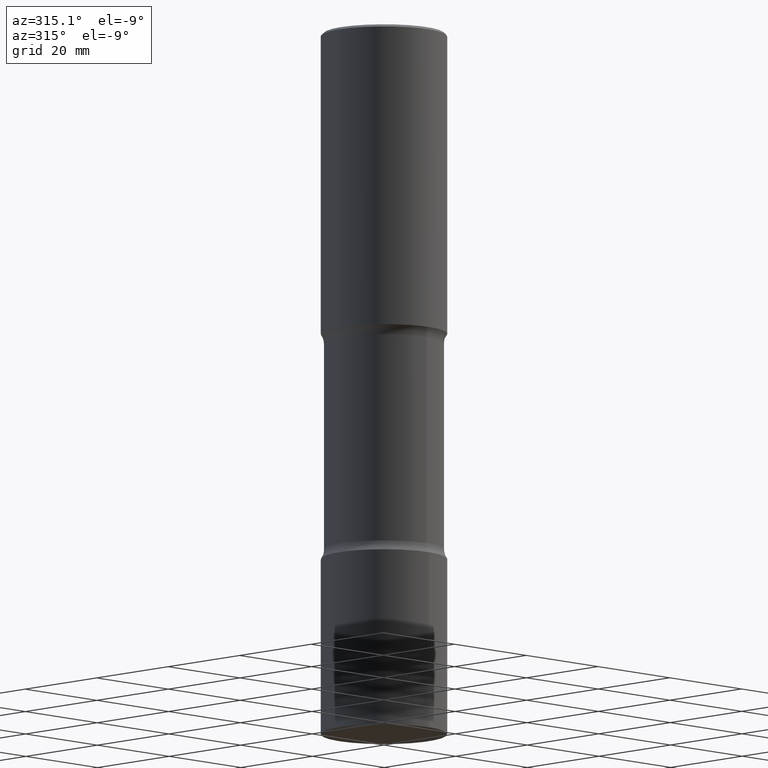
[diagram: clean part render]
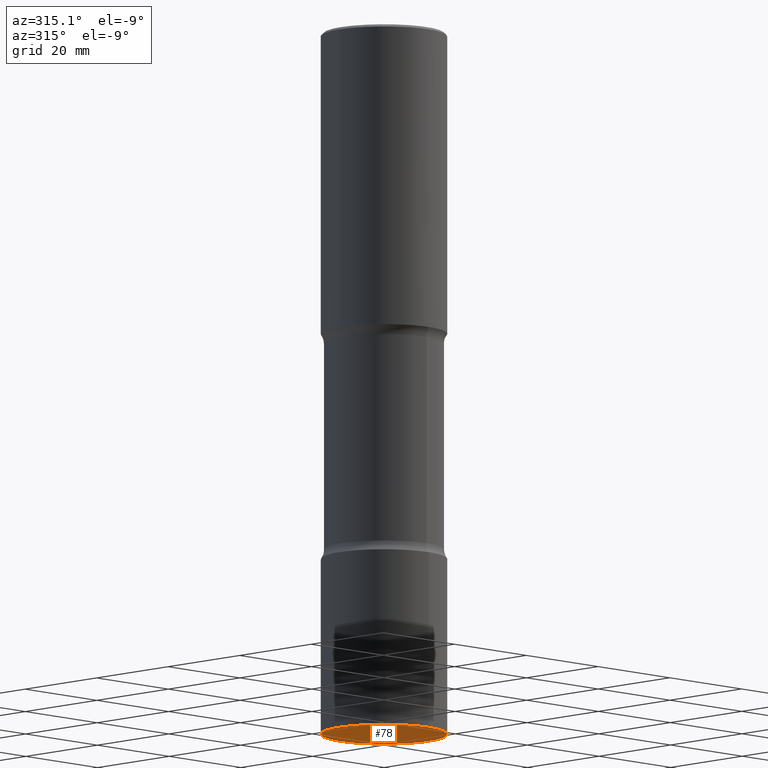
[diagram: same view with one face highlighted and labeled with its STEP entity id]
A machine part, auxiliary view. The second image highlights one B-rep face of the part: STEP entity #78.
In plain terms, the highlighted planar face has unit normal (0, -0, -1).
Its self-contained STEP definition (entity closure, byte-faithful):
#15 = EDGE_CURVE ( 'NONE', #432, #172, #110, .T. ) ;
#40 = CIRCLE ( 'NONE', #177, 0.4921499999999999209 ) ;
#65 = DIRECTION ( 'NONE',  ( -6.982962677686265922E-15, -1.000000000000000000, 4.440675393541422465E-15 ) ) ;
#73 = DIRECTION ( 'NONE',  ( -2.445706778904536167E-29, 3.491140548364399135E-15, 1.000000000000000000 ) ) ;
#74 = EDGE_CURVE ( 'NONE', #172, #432, #40, .T. ) ;
#76 = CARTESIAN_POINT ( 'NONE',  ( 1.348024662396602390E-28, -1.924246847447489311E-14, -5.511800000000000033 ) ) ;
#78 = ADVANCED_FACE ( 'NONE', ( #184 ), #384, .T. ) ;
#110 = CIRCLE ( 'NONE', #492, 0.4921499999999999209 ) ;
#113 = DIRECTION ( 'NONE',  ( 6.982962677686265922E-15, 1.000000000000000000, -3.491140548364399135E-15 ) ) ;
#172 = VERTEX_POINT ( 'NONE', #339 ) ;
#176 = EDGE_LOOP ( 'NONE', ( #233, #238 ) ) ;
#177 = AXIS2_PLACEMENT_3D ( 'NONE', #76, #73, #461 ) ;
#184 = FACE_OUTER_BOUND ( 'NONE', #176, .T. ) ;
#188 = AXIS2_PLACEMENT_3D ( 'NONE', #337, #506, #113 ) ;
#219 = DIRECTION ( 'NONE',  ( -2.445706778904536167E-29, 3.491140548364399135E-15, 1.000000000000000000 ) ) ;
#233 = ORIENTED_EDGE ( 'NONE', *, *, #74, .F. ) ;
#238 = ORIENTED_EDGE ( 'NONE', *, *, #15, .F. ) ;
#294 = CARTESIAN_POINT ( 'NONE',  ( 3.496936074043449648E-15, 0.4921499999999806585, -5.511800000000001809 ) ) ;
#337 = CARTESIAN_POINT ( 'NONE',  ( 1.347893496593123646E-28, -1.924434684343564878E-14, -5.511800000000000033 ) ) ;
#339 = CARTESIAN_POINT ( 'NONE',  ( -3.436665081823160487E-15, -0.4921500000000191832, -5.511799999999997368 ) ) ;
#384 = PLANE ( 'NONE',  #188 ) ;
#432 = VERTEX_POINT ( 'NONE', #294 ) ;
#449 = CARTESIAN_POINT ( 'NONE',  ( 1.348024662396602390E-28, -1.924246847447489311E-14, -5.511800000000000033 ) ) ;
#461 = DIRECTION ( 'NONE',  ( -6.982962677686265922E-15, -1.000000000000000000, 4.440675393541422465E-15 ) ) ;
#492 = AXIS2_PLACEMENT_3D ( 'NONE', #449, #219, #65 ) ;
#506 = DIRECTION ( 'NONE',  ( 2.445706778904535887E-29, -3.491140548364399135E-15, -1.000000000000000000 ) ) ;